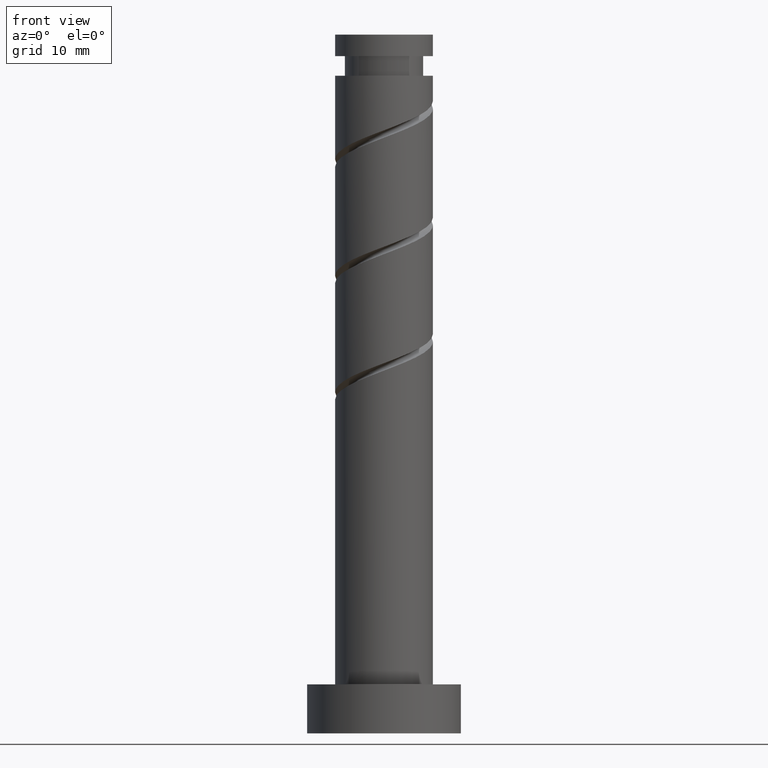
[diagram: clean part render]
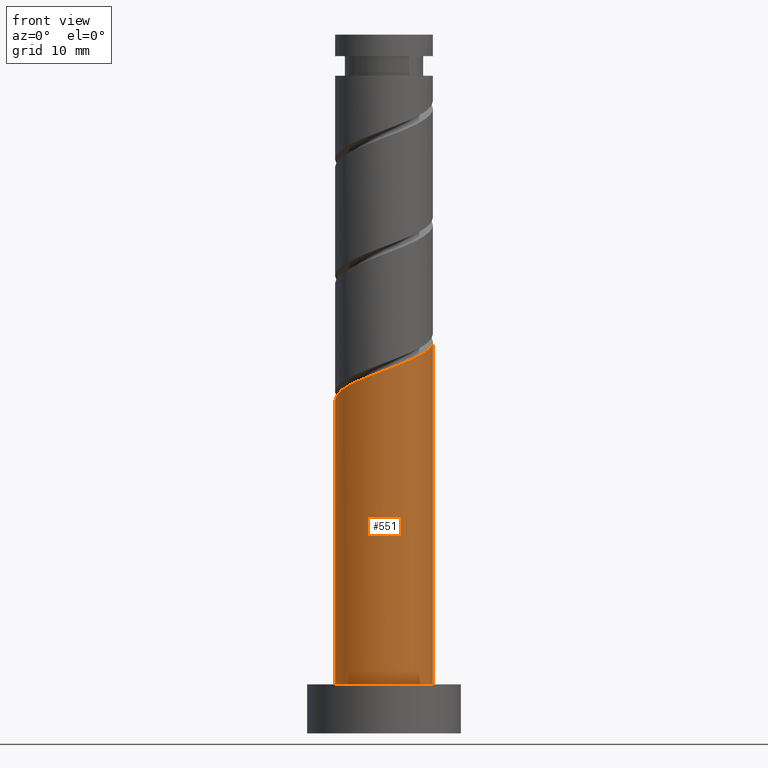
[diagram: same view with one face highlighted and labeled with its STEP entity id]
A machine part, front view. The second image highlights one B-rep face of the part: STEP entity #551.
In plain terms, the highlighted cylindrical surface (partial cylindrical patch) has radius 7 mm, axis along (-0, -0, -1).
Its self-contained STEP definition (entity closure, byte-faithful):
#3 = CARTESIAN_POINT ( 'NONE',  ( 4.707881453605407884, -5.325347051691633915, 53.84795251487296497 ) ) ;
#11 = CARTESIAN_POINT ( 'NONE',  ( -6.965826557536219710, -1.414471410982079291, 48.29239695931742204 ) ) ;
#54 = CARTESIAN_POINT ( 'NONE',  ( 7.000000000000000000, 8.572527594031471218E-16, 100.0000000000000000 ) ) ;
#67 = DIRECTION ( 'NONE',  ( -0.000000000000000000, -0.000000000000000000, -1.000000000000000000 ) ) ;
#136 = CARTESIAN_POINT ( 'NONE',  ( -5.244443063986624409, -4.636358155772991374, 49.68128584820630778 ) ) ;
#144 = CARTESIAN_POINT ( 'NONE',  ( 6.637425475935892827, -2.223641844227022268, 55.23684140376186491 ) ) ;
#152 = CARTESIAN_POINT ( 'NONE',  ( 2.602585499609337383, -6.614379617121000976, 52.92202658894704115 ) ) ;
#156 = AXIS2_PLACEMENT_3D ( 'NONE', #627, #67, #979 ) ;
#217 = DIRECTION ( 'NONE',  ( 1.000000000000000000, 0.000000000000000000, 0.000000000000000000 ) ) ;
#242 = CARTESIAN_POINT ( 'NONE',  ( -7.000000000000007994, 5.109126559037642631E-15, 47.76154207099533267 ) ) ;
#246 = CARTESIAN_POINT ( 'NONE',  ( -6.513892328306681634, -2.563046377892428840, 48.75535992228039106 ) ) ;
#247 = CARTESIAN_POINT ( 'NONE',  ( -2.257945103930810049, -6.739818462673710542, 51.07017473709517930 ) ) ;
#256 = CARTESIAN_POINT ( 'NONE',  ( 6.245337423366336793, -3.393999038076240371, 54.77387844079888879 ) ) ;
#261 = CARTESIAN_POINT ( 'NONE',  ( -6.061958099077141782, -3.711621344802779277, 49.21832288524334587 ) ) ;
#279 = EDGE_CURVE ( 'NONE', #1035, #457, #328, .T. ) ;
#293 = EDGE_CURVE ( 'NONE', #1035, #671, #973, .T. ) ;
#302 = VECTOR ( 'NONE', #1375, 1000.000000000000000 ) ;
#328 = LINE ( 'NONE', #1011, #302 ) ;
#344 = CARTESIAN_POINT ( 'NONE',  ( -7.000000000000007994, 5.109126559037642631E-15, 47.76154207099533267 ) ) ;
#358 = CARTESIAN_POINT ( 'NONE',  ( 5.476609438485875003, -4.359673044883936477, 54.31091547783594820 ) ) ;
#364 = CARTESIAN_POINT ( 'NONE',  ( -4.426928028896104372, -5.561094966743203472, 50.14424881116927679 ) ) ;
#384 = CARTESIAN_POINT ( 'NONE',  ( 0.1833793242891951225, -7.105620382879017427, 51.99610066302111733 ) ) ;
#426 = CARTESIAN_POINT ( 'NONE',  ( 0.000000000000000000, 0.000000000000000000, 7.000000000000000000 ) ) ;
#433 = DIRECTION ( 'NONE',  ( 0.000000000000000000, 0.000000000000000000, 1.000000000000000000 ) ) ;
#448 = CARTESIAN_POINT ( 'NONE',  ( 7.000000000000000000, 8.572527594031471218E-16, 7.000000000000000000 ) ) ;
#457 = VERTEX_POINT ( 'NONE', #1068 ) ;
#529 = CARTESIAN_POINT ( 'NONE',  ( -7.000000000000007994, -0.09031172032414452877, 47.79555944492768305 ) ) ;
#551 = ADVANCED_FACE ( 'NONE', ( #739 ), #1324, .T. ) ;
#558 = EDGE_LOOP ( 'NONE', ( #1356, #1280, #933, #1401 ) ) ;
#598 = CARTESIAN_POINT ( 'NONE',  ( 7.000000000000011546, -1.141380602743203632, 55.66495589196304650 ) ) ;
#623 = EDGE_CURVE ( 'NONE', #671, #1340, #634, .T. ) ;
#627 = CARTESIAN_POINT ( 'NONE',  ( 0.000000000000000000, 0.000000000000000000, 100.0000000000000000 ) ) ;
#634 = LINE ( 'NONE', #54, #1111 ) ;
#635 = CARTESIAN_POINT ( 'NONE',  ( 7.000000000000007994, -5.064309659396961306E-15, 56.09487540432866837 ) ) ;
#671 = VERTEX_POINT ( 'NONE', #635 ) ;
#739 = FACE_OUTER_BOUND ( 'NONE', #558, .T. ) ;
#758 = DIRECTION ( 'NONE',  ( -0.000000000000000000, -0.000000000000000000, -1.000000000000000000 ) ) ;
#820 = CARTESIAN_POINT ( 'NONE',  ( -1.037282889820807297, -6.922719422776366649, 51.53313770005817673 ) ) ;
#933 = ORIENTED_EDGE ( 'NONE', *, *, #279, .T. ) ;
#973 =( BOUNDED_CURVE ( )  B_SPLINE_CURVE ( 2, ( #242, #529, #985, #11, #246, #261, #136, #364, #1169, #247, #820, #384, #1407, #152, #1283, #3, #358, #256, #144, #598, #1058 ),
 .UNSPECIFIED., .F., .T. ) 
 B_SPLINE_CURVE_WITH_KNOTS ( ( 3, 2, 2, 2, 2, 2, 2, 2, 2, 2, 3 ),
 ( 0.05452480538552906264, 0.05555555555555558023, 0.06944444444444441977, 0.08333333333333337034, 0.09722222222222220989, 0.1111111111111111605, 0.1250000000000000000, 0.1388888888888888395, 0.1527777777777777901, 0.1666666666666666297, 0.1795248053855290626 ),
 .UNSPECIFIED. ) 
 CURVE ( )  GEOMETRIC_REPRESENTATION_ITEM ( )  RATIONAL_B_SPLINE_CURVE ( ( 0.9071930855141266958, 0.9080659294509743074, 0.9090909090909143897, 0.8952797754656489637, 0.9090909090909143897, 0.8952797754656489637, 0.9090909090909143897, 0.8952797754656489637, 0.9090909090909143897, 0.8952797754656489637, 0.9090909090909143897, 0.8952797754656489637, 0.9090909090909143897, 0.8952797754656489637, 0.9090909090909143897, 0.8952797754656489637, 0.9090909090909143897, 0.8952797754656489637, 0.9090909090909143897, 0.8963047551055890461, 0.9071930855141266958 ) ) 
 REPRESENTATION_ITEM ( '' )  );
#979 = DIRECTION ( 'NONE',  ( -1.000000000000000000, 0.000000000000000000, 0.000000000000000000 ) ) ;
#985 = CARTESIAN_POINT ( 'NONE',  ( -6.997670043020832509, -0.1805933803021411710, 47.82943399635446013 ) ) ;
#1011 = CARTESIAN_POINT ( 'NONE',  ( -7.000000000000000000, 0.000000000000000000, 100.0000000000000000 ) ) ;
#1035 = VERTEX_POINT ( 'NONE', #344 ) ;
#1058 = CARTESIAN_POINT ( 'NONE',  ( 7.000000000000007994, -5.064309659396961306E-15, 56.09487540432866837 ) ) ;
#1065 = AXIS2_PLACEMENT_3D ( 'NONE', #426, #433, #217 ) ;
#1068 = CARTESIAN_POINT ( 'NONE',  ( -7.000000000000000000, 0.000000000000000000, 7.000000000000000000 ) ) ;
#1111 = VECTOR ( 'NONE', #758, 1000.000000000000000 ) ;
#1169 = CARTESIAN_POINT ( 'NONE',  ( -3.342436566413458987, -6.150456714708457895, 50.60721177413224581 ) ) ;
#1244 = EDGE_CURVE ( 'NONE', #457, #1340, #1286, .T. ) ;
#1280 = ORIENTED_EDGE ( 'NONE', *, *, #293, .F. ) ;
#1283 = CARTESIAN_POINT ( 'NONE',  ( 3.655233476607375298, -5.969863334406318778, 53.38498955191001727 ) ) ;
#1286 = CIRCLE ( 'NONE', #1065, 7.000000000000000000 ) ;
#1324 = CYLINDRICAL_SURFACE ( 'NONE', #156, 7.000000000000000000 ) ;
#1340 = VERTEX_POINT ( 'NONE', #448 ) ;
#1356 = ORIENTED_EDGE ( 'NONE', *, *, #623, .F. ) ;
#1375 = DIRECTION ( 'NONE',  ( -0.000000000000000000, -0.000000000000000000, -1.000000000000000000 ) ) ;
#1401 = ORIENTED_EDGE ( 'NONE', *, *, #1244, .T. ) ;
#1407 = CARTESIAN_POINT ( 'NONE',  ( 1.392982411949268418, -6.860000000000010978, 52.45906362598409345 ) ) ;